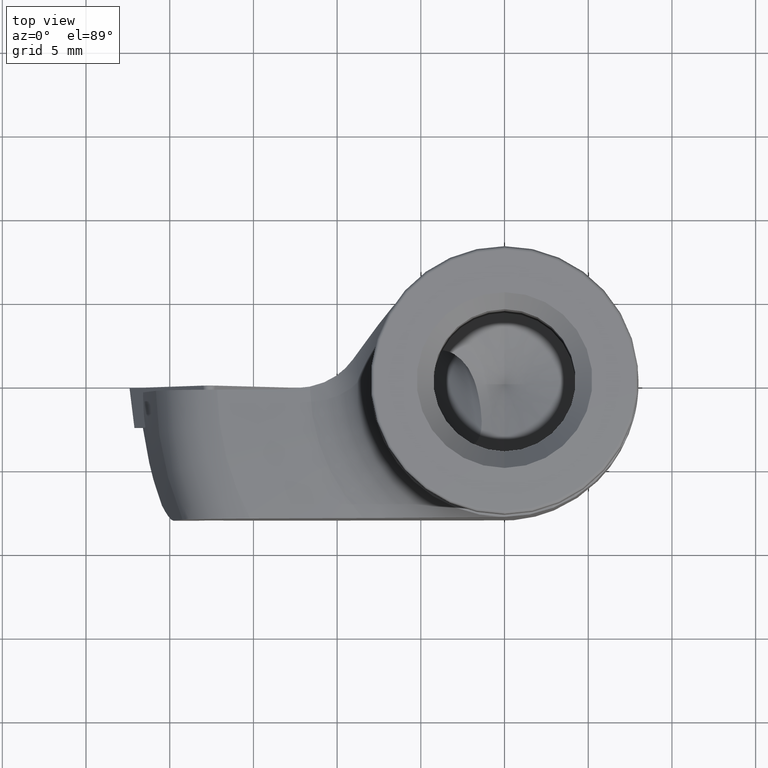
[diagram: clean part render]
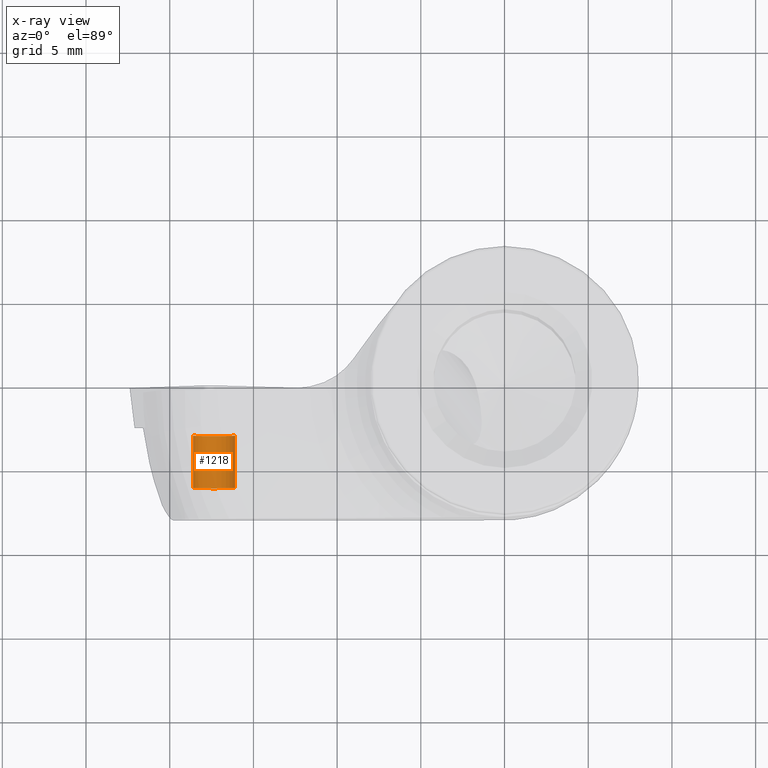
[diagram: x-ray — body ghosted, one internal face saturated and labeled with its STEP entity id]
A machine part, top view, then the same camera in x-ray: the body is ghosted and one INTERNAL B-rep face — a face not visible from any outside direction — is saturated and labeled: STEP entity #1218.
In plain terms, the highlighted cylindrical surface (edge-blend (fillet) strip) has radius 1.25 mm, axis along (-0, 1, -0).
Its self-contained STEP definition (entity closure, byte-faithful):
#780=EDGE_CURVE('NONE',#1658,#1406,#2136,.T.);
#1108=EDGE_CURVE('NONE',#1406,#1506,#2499,.T.);
#1218=ADVANCED_FACE('NONE',(#2619),#2620,.T.);
#1406=VERTEX_POINT('NONE',#2823);
#1506=VERTEX_POINT('NONE',#2934);
#1658=VERTEX_POINT('NONE',#3102);
#1834=EDGE_CURVE('NONE',#1658,#2004,#3289,.T.);
#1910=EDGE_CURVE('NONE',#2004,#1506,#3374,.T.);
#2004=VERTEX_POINT('NONE',#3476);
#2136=CIRCLE('',#3736,1.25);
#2499=LINE('',#4499,#4500);
#2619=FACE_OUTER_BOUND('',#5223,.T.);
#2620=CYLINDRICAL_SURFACE('',#5224,1.25);
#2823=CARTESIAN_POINT('',(-18.6037521029989,-6.04499999999999,-23.4174726344393));
#2934=CARTESIAN_POINT('',(-18.6037521029989,-2.92,-23.4174726344393));
#3102=CARTESIAN_POINT('',(-16.1037521029989,-6.04499999999999,-23.4174726344393));
#3289=LINE('',#7196,#7197);
#3374=CIRCLE('',#7325,1.25);
#3476=CARTESIAN_POINT('',(-16.1037521029989,-2.92,-23.4174726344393));
#3736=AXIS2_PLACEMENT_3D('',#7681,#7682,#7683);
#4499=CARTESIAN_POINT('',(-18.6037521029989,1.02242507433892,-23.4174726344393));
#4500=VECTOR('',#8124,1000.0);
#5223=EDGE_LOOP('',(#8284,#8285,#8286,#8287));
#5224=AXIS2_PLACEMENT_3D('',#8288,#8289,#8290);
#7196=CARTESIAN_POINT('',(-16.1037521029989,1.02242507433892,-23.4174726344393));
#7197=VECTOR('',#9021,1000.0);
#7325=AXIS2_PLACEMENT_3D('',#9140,#9141,#9142);
#7681=CARTESIAN_POINT('',(-17.3537521029989,-6.04499999999999,-23.4174726344393));
#7682=DIRECTION('',(0.0,1.0,0.0));
#7683=DIRECTION('',(1.0,0.0,-1.22464679914735E-016));
#8124=DIRECTION('',(0.0,1.0,0.0));
#8284=ORIENTED_EDGE('',*,*,#780,.T.);
#8285=ORIENTED_EDGE('',*,*,#1108,.T.);
#8286=ORIENTED_EDGE('',*,*,#1910,.F.);
#8287=ORIENTED_EDGE('',*,*,#1834,.F.);
#8288=CARTESIAN_POINT('',(-17.3537521029989,1.02242507433892,-23.4174726344393));
#8289=DIRECTION('',(-0.0,1.0,-0.0));
#8290=DIRECTION('',(1.0,0.0,-1.22464679914735E-016));
#9021=DIRECTION('',(0.0,1.0,0.0));
#9140=CARTESIAN_POINT('',(-17.3537521029989,-2.92,-23.4174726344393));
#9141=DIRECTION('',(0.0,1.0,0.0));
#9142=DIRECTION('',(1.0,0.0,-1.22464679914735E-016));